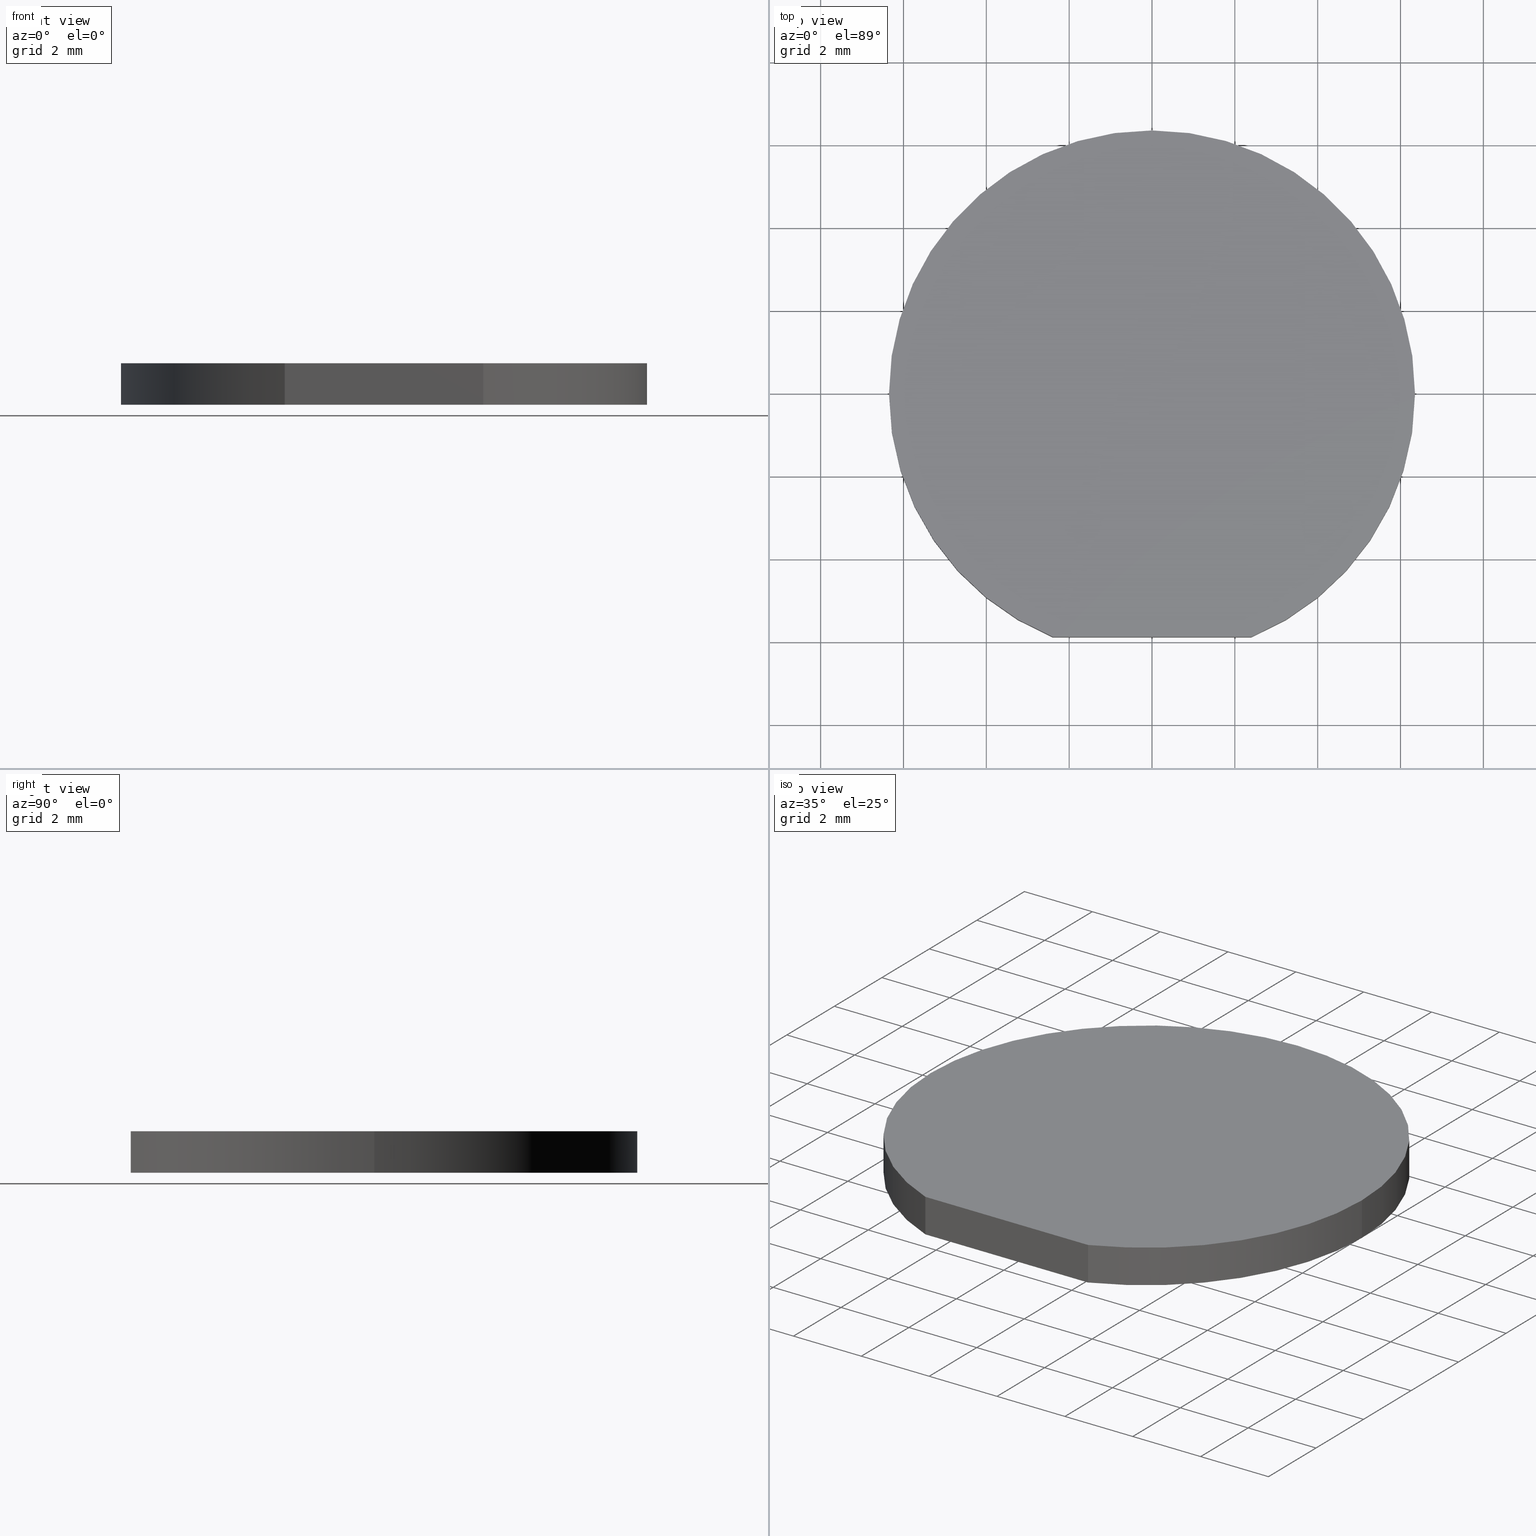
[diagram: canonical four-view strip — front | top / right | iso, engineering-drawing reading convention]
A machine part, canonical four-view strip (front | top / right | iso — engineering-drawing reading convention). The complete STEP part file that produces these views, byte-faithful:
ISO-10303-21;
HEADER;
FILE_DESCRIPTION (( 'STEP AP214' ),
    '1' );
FILE_NAME ('336000.STEP',
    '2020-09-24T07:37:32',
    ( '' ),
    ( '' ),
    'SwSTEP 2.0',
    'SolidWorks 2019',
    '' );
FILE_SCHEMA (( 'AUTOMOTIVE_DESIGN' ));
ENDSEC;

DATA;
#1 =( NAMED_UNIT ( * ) SI_UNIT ( $, .STERADIAN. ) SOLID_ANGLE_UNIT ( ) );
#2 = LINE ( 'NONE', #179, #77 ) ;
#3 = COLOUR_RGB ( '',1.000000000000000000, 1.000000000000000000, 1.000000000000000000 ) ;
#4 = ADVANCED_FACE ( 'NONE', ( #191 ), #55, .T. ) ;
#5 = EDGE_LOOP ( 'NONE', ( #202, #87, #79, #66 ) ) ;
#6 = PRODUCT ( '336000', '336000', '', ( #96 ) ) ;
#7 = VERTEX_POINT ( 'NONE', #53 ) ;
#8 = AXIS2_PLACEMENT_3D ( 'NONE', #169, #133, #86 ) ;
#9 = EDGE_CURVE ( 'NONE', #135, #128, #194, .T. ) ;
#10 = UNCERTAINTY_MEASURE_WITH_UNIT (LENGTH_MEASURE( 1.000000000000000082E-05 ), #106, 'distance_accuracy_value', 'NONE');
#11 = DIRECTION ( 'NONE',  ( -0.0000000000000000000, -0.0000000000000000000, -1.000000000000000000 ) ) ;
#12 = FACE_OUTER_BOUND ( 'NONE', #40, .T. ) ;
#13 = DIRECTION ( 'NONE',  ( -1.000000000000000000, 0.0000000000000000000, 0.0000000000000000000 ) ) ;
#14 = CARTESIAN_POINT ( 'NONE',  ( 0.0000000000000000000, 0.0000000000000000000, 1.000000000000000000 ) ) ;
#15 = PRESENTATION_STYLE_ASSIGNMENT (( #46 ) ) ;
#16 = VECTOR ( 'NONE', #127, 1000.000000000000000 ) ;
#17 = CARTESIAN_POINT ( 'NONE',  ( -2.397519551536545723, -5.879999999999999893, 1.000000000000000000 ) ) ;
#18 = FACE_OUTER_BOUND ( 'NONE', #78, .T. ) ;
#19 = EDGE_CURVE ( 'NONE', #150, #135, #167, .T. ) ;
#20 = DIRECTION ( 'NONE',  ( -0.0000000000000000000, -0.0000000000000000000, -1.000000000000000000 ) ) ;
#21 = DIRECTION ( 'NONE',  ( 0.0000000000000000000, 0.0000000000000000000, 1.000000000000000000 ) ) ;
#22 = PRODUCT_DEFINITION_SHAPE ( 'NONE', 'NONE',  #28 ) ;
#23 = ORIENTED_EDGE ( 'NONE', *, *, #157, .F. ) ;
#24 = AXIS2_PLACEMENT_3D ( 'NONE', #14, #168, #189 ) ;
#25 = APPLICATION_PROTOCOL_DEFINITION ( 'draft international standard', 'automotive_design', 1998, #173 ) ;
#26 = EDGE_LOOP ( 'NONE', ( #149, #98, #129, #148 ) ) ;
#27 = CARTESIAN_POINT ( 'NONE',  ( 0.0000000000000000000, 0.0000000000000000000, 0.0000000000000000000 ) ) ;
#28 = PRODUCT_DEFINITION ( 'δ֪', '', #108, #70 ) ;
#29 = FACE_OUTER_BOUND ( 'NONE', #5, .T. ) ;
#30 = CARTESIAN_POINT ( 'NONE',  ( 0.0000000000000000000, -5.879999999999999893, 0.0000000000000000000 ) ) ;
#31 = ORIENTED_EDGE ( 'NONE', *, *, #110, .F. ) ;
#32 = CARTESIAN_POINT ( 'NONE',  ( 0.0000000000000000000, 0.0000000000000000000, 1.000000000000000000 ) ) ;
#33 = DIRECTION ( 'NONE',  ( 1.000000000000000000, 0.0000000000000000000, 0.0000000000000000000 ) ) ;
#34 = VECTOR ( 'NONE', #122, 1000.000000000000000 ) ;
#35 = DIRECTION ( 'NONE',  ( -0.0000000000000000000, -0.0000000000000000000, -1.000000000000000000 ) ) ;
#36 =( NAMED_UNIT ( * ) PLANE_ANGLE_UNIT ( ) SI_UNIT ( $, .RADIAN. ) );
#37 = CIRCLE ( 'NONE', #199, 6.349999999999999645 ) ;
#38 = ORIENTED_EDGE ( 'NONE', *, *, #47, .T. ) ;
#39 = DIRECTION ( 'NONE',  ( 1.000000000000000000, 0.0000000000000000000, 0.0000000000000000000 ) ) ;
#40 = EDGE_LOOP ( 'NONE', ( #31, #38, #63, #80 ) ) ;
#41 = CARTESIAN_POINT ( 'NONE',  ( 0.0000000000000000000, 0.0000000000000000000, 0.0000000000000000000 ) ) ;
#42 = DIRECTION ( 'NONE',  ( 0.0000000000000000000, 0.0000000000000000000, 1.000000000000000000 ) ) ;
#43 = DIRECTION ( 'NONE',  ( 0.0000000000000000000, 0.0000000000000000000, 1.000000000000000000 ) ) ;
#44 = STYLED_ITEM ( 'NONE', ( #15 ), #131 ) ;
#45 = VECTOR ( 'NONE', #11, 1000.000000000000000 ) ;
#46 = SURFACE_STYLE_USAGE ( .BOTH. , #193 ) ;
#47 = EDGE_CURVE ( 'NONE', #115, #185, #67, .T. ) ;
#48 = DIRECTION ( 'NONE',  ( -0.0000000000000000000, -0.0000000000000000000, -1.000000000000000000 ) ) ;
#49 =( NAMED_UNIT ( * ) PLANE_ANGLE_UNIT ( ) SI_UNIT ( $, .RADIAN. ) );
#50 = MECHANICAL_DESIGN_GEOMETRIC_PRESENTATION_REPRESENTATION (  '', ( #153 ), #144 ) ;
#51 = ORIENTED_EDGE ( 'NONE', *, *, #162, .F. ) ;
#52 = AXIS2_PLACEMENT_3D ( 'NONE', #181, #200, #39 ) ;
#53 = CARTESIAN_POINT ( 'NONE',  ( -6.349999999999999645, 0.0000000000000000000, 0.0000000000000000000 ) ) ;
#54 = DIRECTION ( 'NONE',  ( -1.000000000000000000, -0.0000000000000000000, 0.0000000000000000000 ) ) ;
#55 = CYLINDRICAL_SURFACE ( 'NONE', #24, 6.349999999999999645 ) ;
#56 = FACE_OUTER_BOUND ( 'NONE', #165, .T. ) ;
#57 =( LENGTH_UNIT ( ) NAMED_UNIT ( * ) SI_UNIT ( .MILLI., .METRE. ) );
#58 = EDGE_CURVE ( 'NONE', #128, #7, #105, .T. ) ;
#59 = PRESENTATION_STYLE_ASSIGNMENT (( #208 ) ) ;
#60 = CARTESIAN_POINT ( 'NONE',  ( 2.397519551536546167, -5.879999999999999893, 1.000000000000000000 ) ) ;
#61 = ADVANCED_FACE ( 'NONE', ( #12 ), #104, .F. ) ;
#62 = ORIENTED_EDGE ( 'NONE', *, *, #157, .T. ) ;
#63 = ORIENTED_EDGE ( 'NONE', *, *, #94, .F. ) ;
#64 = AXIS2_PLACEMENT_3D ( 'NONE', #111, #35, #89 ) ;
#65 = EDGE_LOOP ( 'NONE', ( #62, #156, #184, #51 ) ) ;
#66 = ORIENTED_EDGE ( 'NONE', *, *, #110, .T. ) ;
#67 = LINE ( 'NONE', #30, #93 ) ;
#68 = DIRECTION ( 'NONE',  ( 1.000000000000000000, 0.0000000000000000000, -0.0000000000000000000 ) ) ;
#69 = DIRECTION ( 'NONE',  ( 1.000000000000000000, 0.0000000000000000000, 0.0000000000000000000 ) ) ;
#70 = PRODUCT_DEFINITION_CONTEXT ( 'detailed design', #173, 'design' ) ;
#71 = CARTESIAN_POINT ( 'NONE',  ( -6.349999999999999645, 0.0000000000000000000, 1.000000000000000000 ) ) ;
#72 = EDGE_CURVE ( 'NONE', #99, #7, #204, .T. ) ;
#73 = CARTESIAN_POINT ( 'NONE',  ( -5.887338073691013918, -5.879999999999999893, 0.0000000000000000000 ) ) ;
#74 = AXIS2_PLACEMENT_3D ( 'NONE', #188, #84, #69 ) ;
#75 =( LENGTH_UNIT ( ) NAMED_UNIT ( * ) SI_UNIT ( .MILLI., .METRE. ) );
#76 = APPLICATION_CONTEXT ( 'automotive_design' ) ;
#77 = VECTOR ( 'NONE', #20, 1000.000000000000000 ) ;
#78 = EDGE_LOOP ( 'NONE', ( #132, #166, #186, #95 ) ) ;
#79 = ORIENTED_EDGE ( 'NONE', *, *, #162, .T. ) ;
#80 = ORIENTED_EDGE ( 'NONE', *, *, #58, .F. ) ;
#81 = SHAPE_DEFINITION_REPRESENTATION ( #22, #190 ) ;
#82 = ADVANCED_FACE ( 'NONE', ( #56 ), #171, .T. ) ;
#83 = DIRECTION ( 'NONE',  ( 0.0000000000000000000, 0.0000000000000000000, 1.000000000000000000 ) ) ;
#84 = DIRECTION ( 'NONE',  ( 0.0000000000000000000, 0.0000000000000000000, 1.000000000000000000 ) ) ;
#85 = CIRCLE ( 'NONE', #91, 6.349999999999999645 ) ;
#86 = DIRECTION ( 'NONE',  ( 1.000000000000000000, 0.0000000000000000000, 0.0000000000000000000 ) ) ;
#87 = ORIENTED_EDGE ( 'NONE', *, *, #19, .F. ) ;
#88 = FILL_AREA_STYLE_COLOUR ( '', #3 ) ;
#89 = DIRECTION ( 'NONE',  ( -1.000000000000000000, 0.0000000000000000000, 0.0000000000000000000 ) ) ;
#90 = DIRECTION ( 'NONE',  ( -0.0000000000000000000, 1.000000000000000000, 0.0000000000000000000 ) ) ;
#91 = AXIS2_PLACEMENT_3D ( 'NONE', #32, #196, #33 ) ;
#92 = CARTESIAN_POINT ( 'NONE',  ( -2.397519551536545723, -5.879999999999999893, 0.0000000000000000000 ) ) ;
#93 = VECTOR ( 'NONE', #54, 1000.000000000000000 ) ;
#94 = EDGE_CURVE ( 'NONE', #7, #185, #101, .T. ) ;
#95 = ORIENTED_EDGE ( 'NONE', *, *, #151, .T. ) ;
#96 = PRODUCT_CONTEXT ( 'NONE', #76, 'mechanical' ) ;
#97 = UNCERTAINTY_MEASURE_WITH_UNIT (LENGTH_MEASURE( 1.000000000000000082E-05 ), #75, 'distance_accuracy_value', 'NONE');
#98 = ORIENTED_EDGE ( 'NONE', *, *, #9, .T. ) ;
#99 = VERTEX_POINT ( 'NONE', #71 ) ;
#100 = PRODUCT_RELATED_PRODUCT_CATEGORY ( 'part', '', ( #6 ) ) ;
#101 = CIRCLE ( 'NONE', #8, 6.349999999999999645 ) ;
#102 = CARTESIAN_POINT ( 'NONE',  ( 0.0000000000000000000, 0.0000000000000000000, 1.000000000000000000 ) ) ;
#103 = DIRECTION ( 'NONE',  ( 1.000000000000000000, 0.0000000000000000000, 0.0000000000000000000 ) ) ;
#104 = PLANE ( 'NONE',  #130 ) ;
#105 = CIRCLE ( 'NONE', #177, 6.349999999999999645 ) ;
#106 =( LENGTH_UNIT ( ) NAMED_UNIT ( * ) SI_UNIT ( .MILLI., .METRE. ) );
#107 = CARTESIAN_POINT ( 'NONE',  ( -6.349999999999999645, 0.0000000000000000000, 1.000000000000000000 ) ) ;
#108 = PRODUCT_DEFINITION_FORMATION_WITH_SPECIFIED_SOURCE ( '�κ�', '', #6, .NOT_KNOWN. ) ;
#109 = PLANE ( 'NONE',  #183 ) ;
#110 = EDGE_CURVE ( 'NONE', #115, #128, #37, .T. ) ;
#111 = CARTESIAN_POINT ( 'NONE',  ( 0.0000000000000000000, 0.0000000000000000000, 1.000000000000000000 ) ) ;
#112 = ADVANCED_FACE ( 'NONE', ( #29 ), #155, .T. ) ;
#113 = VECTOR ( 'NONE', #21, 1000.000000000000000 ) ;
#114 = ORIENTED_EDGE ( 'NONE', *, *, #125, .T. ) ;
#115 = VERTEX_POINT ( 'NONE', #174 ) ;
#116 = AXIS2_PLACEMENT_3D ( 'NONE', #152, #42, #154 ) ;
#117 = DIRECTION ( 'NONE',  ( 0.0000000000000000000, 0.0000000000000000000, 1.000000000000000000 ) ) ;
#118 = UNCERTAINTY_MEASURE_WITH_UNIT (LENGTH_MEASURE( 1.000000000000000082E-05 ), #57, 'distance_accuracy_value', 'NONE');
#119 = DIRECTION ( 'NONE',  ( 0.0000000000000000000, 0.0000000000000000000, 1.000000000000000000 ) ) ;
#120 = CIRCLE ( 'NONE', #74, 6.349999999999999645 ) ;
#121 = FILL_AREA_STYLE ('',( #88 ) ) ;
#122 = DIRECTION ( 'NONE',  ( -0.0000000000000000000, -0.0000000000000000000, -1.000000000000000000 ) ) ;
#123 = CARTESIAN_POINT ( 'NONE',  ( -5.887338073691013918, -5.879999999999999893, 1.000000000000000000 ) ) ;
#124 = FACE_OUTER_BOUND ( 'NONE', #65, .T. ) ;
#125 = EDGE_CURVE ( 'NONE', #135, #99, #120, .T. ) ;
#126 = APPLICATION_PROTOCOL_DEFINITION ( 'draft international standard', 'automotive_design', 1998, #76 ) ;
#127 = DIRECTION ( 'NONE',  ( -1.000000000000000000, -0.0000000000000000000, -0.0000000000000000000 ) ) ;
#128 = VERTEX_POINT ( 'NONE', #205 ) ;
#129 = ORIENTED_EDGE ( 'NONE', *, *, #58, .T. ) ;
#130 = AXIS2_PLACEMENT_3D ( 'NONE', #41, #83, #68 ) ;
#131 = MANIFOLD_SOLID_BREP ( '�г�-����1', #172 ) ;
#132 = ORIENTED_EDGE ( 'NONE', *, *, #138, .F. ) ;
#133 = DIRECTION ( 'NONE',  ( 0.0000000000000000000, 0.0000000000000000000, 1.000000000000000000 ) ) ;
#134 = CARTESIAN_POINT ( 'NONE',  ( 0.0000000000000000000, 0.0000000000000000000, 1.000000000000000000 ) ) ;
#135 = VERTEX_POINT ( 'NONE', #207 ) ;
#136 =( GEOMETRIC_REPRESENTATION_CONTEXT ( 3 ) GLOBAL_UNCERTAINTY_ASSIGNED_CONTEXT ( ( #97 ) ) GLOBAL_UNIT_ASSIGNED_CONTEXT ( ( #75, #161, #1 ) ) REPRESENTATION_CONTEXT ( 'NONE', 'WORKASPACE' ) );
#137 = DIRECTION ( 'NONE',  ( 1.000000000000000000, 0.0000000000000000000, 0.0000000000000000000 ) ) ;
#138 = EDGE_CURVE ( 'NONE', #99, #163, #85, .T. ) ;
#139 = CARTESIAN_POINT ( 'NONE',  ( 6.349999999999999645, 7.776507174585692163E-16, 1.000000000000000000 ) ) ;
#140 = SURFACE_SIDE_STYLE ('',( #197 ) ) ;
#141 = COLOUR_RGB ( '',1.000000000000000000, 1.000000000000000000, 1.000000000000000000 ) ;
#142 = FILL_AREA_STYLE ('',( #145 ) ) ;
#143 = DIRECTION ( 'NONE',  ( 0.0000000000000000000, -0.0000000000000000000, 1.000000000000000000 ) ) ;
#144 =( GEOMETRIC_REPRESENTATION_CONTEXT ( 3 ) GLOBAL_UNCERTAINTY_ASSIGNED_CONTEXT ( ( #118 ) ) GLOBAL_UNIT_ASSIGNED_CONTEXT ( ( #57, #36, #187 ) ) REPRESENTATION_CONTEXT ( 'NONE', 'WORKASPACE' ) );
#145 = FILL_AREA_STYLE_COLOUR ( '', #141 ) ;
#146 = PRESENTATION_LAYER_ASSIGNMENT (  '', '', ( #44 ) ) ;
#147 = ORIENTED_EDGE ( 'NONE', *, *, #138, .T. ) ;
#148 = ORIENTED_EDGE ( 'NONE', *, *, #72, .F. ) ;
#149 = ORIENTED_EDGE ( 'NONE', *, *, #125, .F. ) ;
#150 = VERTEX_POINT ( 'NONE', #60 ) ;
#151 = EDGE_CURVE ( 'NONE', #185, #163, #160, .T. ) ;
#152 = CARTESIAN_POINT ( 'NONE',  ( 0.0000000000000000000, 0.0000000000000000000, 1.000000000000000000 ) ) ;
#153 = STYLED_ITEM ( 'NONE', ( #59 ), #190 ) ;
#154 = DIRECTION ( 'NONE',  ( 1.000000000000000000, 0.0000000000000000000, -0.0000000000000000000 ) ) ;
#155 = CYLINDRICAL_SURFACE ( 'NONE', #158, 6.349999999999999645 ) ;
#156 = ORIENTED_EDGE ( 'NONE', *, *, #151, .F. ) ;
#157 = EDGE_CURVE ( 'NONE', #150, #163, #198, .T. ) ;
#158 = AXIS2_PLACEMENT_3D ( 'NONE', #134, #48, #13 ) ;
#159 = SURFACE_STYLE_FILL_AREA ( #121 ) ;
#160 = LINE ( 'NONE', #17, #113 ) ;
#161 =( NAMED_UNIT ( * ) PLANE_ANGLE_UNIT ( ) SI_UNIT ( $, .RADIAN. ) );
#162 = EDGE_CURVE ( 'NONE', #150, #115, #2, .T. ) ;
#163 = VERTEX_POINT ( 'NONE', #195 ) ;
#164 = PRESENTATION_LAYER_ASSIGNMENT (  '', '', ( #153 ) ) ;
#165 = EDGE_LOOP ( 'NONE', ( #23, #182, #114, #147 ) ) ;
#166 = ORIENTED_EDGE ( 'NONE', *, *, #72, .T. ) ;
#167 = CIRCLE ( 'NONE', #201, 6.349999999999999645 ) ;
#168 = DIRECTION ( 'NONE',  ( -0.0000000000000000000, -0.0000000000000000000, -1.000000000000000000 ) ) ;
#169 = CARTESIAN_POINT ( 'NONE',  ( 0.0000000000000000000, 0.0000000000000000000, 0.0000000000000000000 ) ) ;
#170 =( GEOMETRIC_REPRESENTATION_CONTEXT ( 3 ) GLOBAL_UNCERTAINTY_ASSIGNED_CONTEXT ( ( #10 ) ) GLOBAL_UNIT_ASSIGNED_CONTEXT ( ( #106, #49, #176 ) ) REPRESENTATION_CONTEXT ( 'NONE', 'WORKASPACE' ) );
#171 = PLANE ( 'NONE',  #116 ) ;
#172 = CLOSED_SHELL ( 'NONE', ( #4, #192, #112, #82, #61, #180 ) ) ;
#173 = APPLICATION_CONTEXT ( 'automotive_design' ) ;
#174 = CARTESIAN_POINT ( 'NONE',  ( 2.397519551536546167, -5.879999999999999893, 0.0000000000000000000 ) ) ;
#175 = MECHANICAL_DESIGN_GEOMETRIC_PRESENTATION_REPRESENTATION (  '', ( #44 ), #170 ) ;
#176 =( NAMED_UNIT ( * ) SI_UNIT ( $, .STERADIAN. ) SOLID_ANGLE_UNIT ( ) );
#177 = AXIS2_PLACEMENT_3D ( 'NONE', #27, #119, #206 ) ;
#178 = CYLINDRICAL_SURFACE ( 'NONE', #64, 6.349999999999999645 ) ;
#179 = CARTESIAN_POINT ( 'NONE',  ( 2.397519551536545723, -5.879999999999999893, 1.000000000000000000 ) ) ;
#180 = ADVANCED_FACE ( 'NONE', ( #124 ), #109, .F. ) ;
#181 = CARTESIAN_POINT ( 'NONE',  ( 0.0000000000000000000, 0.0000000000000000000, 0.0000000000000000000 ) ) ;
#182 = ORIENTED_EDGE ( 'NONE', *, *, #19, .T. ) ;
#183 = AXIS2_PLACEMENT_3D ( 'NONE', #73, #90, #143 ) ;
#184 = ORIENTED_EDGE ( 'NONE', *, *, #47, .F. ) ;
#185 = VERTEX_POINT ( 'NONE', #92 ) ;
#186 = ORIENTED_EDGE ( 'NONE', *, *, #94, .T. ) ;
#187 =( NAMED_UNIT ( * ) SI_UNIT ( $, .STERADIAN. ) SOLID_ANGLE_UNIT ( ) );
#188 = CARTESIAN_POINT ( 'NONE',  ( 0.0000000000000000000, 0.0000000000000000000, 1.000000000000000000 ) ) ;
#189 = DIRECTION ( 'NONE',  ( -1.000000000000000000, 0.0000000000000000000, 0.0000000000000000000 ) ) ;
#190 = ADVANCED_BREP_SHAPE_REPRESENTATION ( '336000', ( #131, #52 ), #136 ) ;
#191 = FACE_OUTER_BOUND ( 'NONE', #26, .T. ) ;
#192 = ADVANCED_FACE ( 'NONE', ( #18 ), #178, .T. ) ;
#193 = SURFACE_SIDE_STYLE ('',( #159 ) ) ;
#194 = LINE ( 'NONE', #139, #45 ) ;
#195 = CARTESIAN_POINT ( 'NONE',  ( -2.397519551536545723, -5.879999999999999893, 1.000000000000000000 ) ) ;
#196 = DIRECTION ( 'NONE',  ( 0.0000000000000000000, 0.0000000000000000000, 1.000000000000000000 ) ) ;
#197 = SURFACE_STYLE_FILL_AREA ( #142 ) ;
#198 = LINE ( 'NONE', #123, #16 ) ;
#199 = AXIS2_PLACEMENT_3D ( 'NONE', #203, #117, #103 ) ;
#200 = DIRECTION ( 'NONE',  ( 0.0000000000000000000, 0.0000000000000000000, 1.000000000000000000 ) ) ;
#201 = AXIS2_PLACEMENT_3D ( 'NONE', #102, #43, #137 ) ;
#202 = ORIENTED_EDGE ( 'NONE', *, *, #9, .F. ) ;
#203 = CARTESIAN_POINT ( 'NONE',  ( 0.0000000000000000000, 0.0000000000000000000, 0.0000000000000000000 ) ) ;
#204 = LINE ( 'NONE', #107, #34 ) ;
#205 = CARTESIAN_POINT ( 'NONE',  ( 6.349999999999999645, 7.776507174585692163E-16, 0.0000000000000000000 ) ) ;
#206 = DIRECTION ( 'NONE',  ( 1.000000000000000000, 0.0000000000000000000, 0.0000000000000000000 ) ) ;
#207 = CARTESIAN_POINT ( 'NONE',  ( 6.349999999999999645, 7.776507174585692163E-16, 1.000000000000000000 ) ) ;
#208 = SURFACE_STYLE_USAGE ( .BOTH. , #140 ) ;
ENDSEC;
END-ISO-10303-21;
